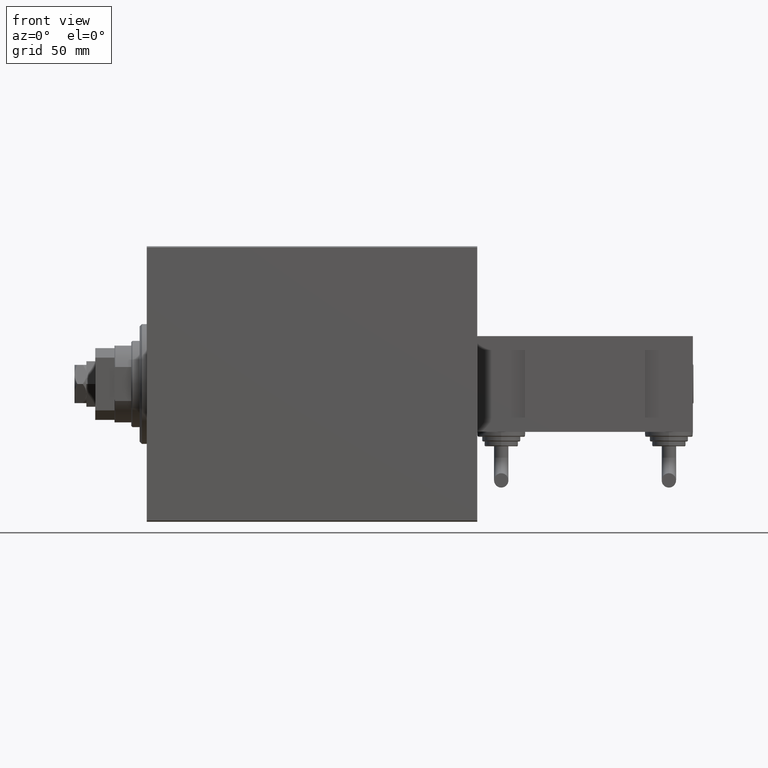
[diagram: clean part render]
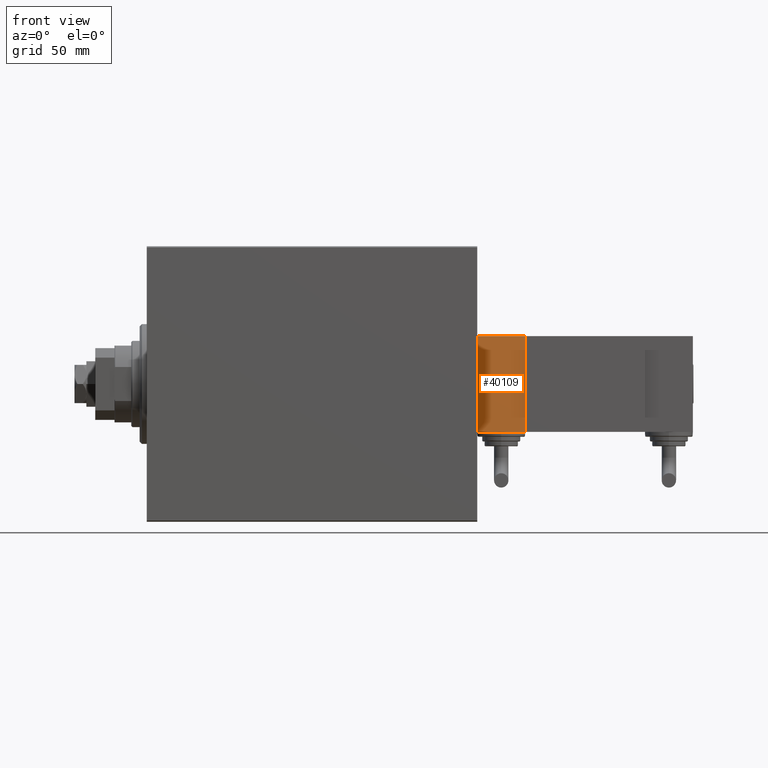
[diagram: same view with one face highlighted and labeled with its STEP entity id]
A machine part, front view. The second image highlights one B-rep face of the part: STEP entity #40109.
In plain terms, the highlighted planar face has unit normal (0, 1, 0).
Its self-contained STEP definition (entity closure, byte-faithful):
#267 = CARTESIAN_POINT ( 'NONE',  ( 20.00000000000005329, -17.49999999999996092, -9.999999999999998224 ) ) ;
#3895 = VERTEX_POINT ( 'NONE', #35900 ) ;
#7275 = ORIENTED_EDGE ( 'NONE', *, *, #45575, .T. ) ;
#8366 = VECTOR ( 'NONE', #9352, 1000.000000000000000 ) ;
#9352 = DIRECTION ( 'NONE',  ( 1.000000000000000000, 0.000000000000000000, 0.000000000000000000 ) ) ;
#9907 = VERTEX_POINT ( 'NONE', #39204 ) ;
#10783 = DIRECTION ( 'NONE',  ( 0.000000000000000000, -0.000000000000000000, 1.000000000000000000 ) ) ;
#10934 = EDGE_LOOP ( 'NONE', ( #13269, #7275, #16828, #23176 ) ) ;
#11631 = LINE ( 'NONE', #267, #49604 ) ;
#13269 = ORIENTED_EDGE ( 'NONE', *, *, #21162, .T. ) ;
#13586 = CARTESIAN_POINT ( 'NONE',  ( 0.000000000000000000, -17.49999999999996092, 0.000000000000000000 ) ) ;
#15922 = DIRECTION ( 'NONE',  ( 0.000000000000000000, 0.000000000000000000, 1.000000000000000000 ) ) ;
#16686 = CARTESIAN_POINT ( 'NONE',  ( -19.99999999999994316, -17.49999999999996092, -9.999999999999998224 ) ) ;
#16828 = ORIENTED_EDGE ( 'NONE', *, *, #45810, .T. ) ;
#16849 = CARTESIAN_POINT ( 'NONE',  ( -19.99999999999994316, -17.49999999999996092, 10.00000000000000000 ) ) ;
#17380 = CARTESIAN_POINT ( 'NONE',  ( -19.99999999999994316, -17.49999999999996092, 10.00000000000000000 ) ) ;
#18124 = VERTEX_POINT ( 'NONE', #16849 ) ;
#18429 = LINE ( 'NONE', #30065, #22206 ) ;
#20482 = LINE ( 'NONE', #16686, #8366 ) ;
#21162 = EDGE_CURVE ( 'NONE', #9907, #3895, #11631, .T. ) ;
#21915 = PLANE ( 'NONE',  #30882 ) ;
#22206 = VECTOR ( 'NONE', #26530, 1000.000000000000000 ) ;
#23176 = ORIENTED_EDGE ( 'NONE', *, *, #43370, .T. ) ;
#25488 = CARTESIAN_POINT ( 'NONE',  ( -19.99999999999994316, -17.49999999999996092, -9.999999999999998224 ) ) ;
#26530 = DIRECTION ( 'NONE',  ( -0.000000000000000000, -0.000000000000000000, -1.000000000000000000 ) ) ;
#30065 = CARTESIAN_POINT ( 'NONE',  ( -19.99999999999994316, -17.49999999999996092, -9.999999999999998224 ) ) ;
#30882 = AXIS2_PLACEMENT_3D ( 'NONE', #13586, #36604, #10783 ) ;
#31810 = VERTEX_POINT ( 'NONE', #25488 ) ;
#32812 = DIRECTION ( 'NONE',  ( -1.000000000000000000, -0.000000000000000000, -0.000000000000000000 ) ) ;
#33555 = FACE_OUTER_BOUND ( 'NONE', #10934, .T. ) ;
#34312 = VECTOR ( 'NONE', #32812, 1000.000000000000000 ) ;
#35900 = CARTESIAN_POINT ( 'NONE',  ( 20.00000000000005329, -17.49999999999996092, 10.00000000000000000 ) ) ;
#36604 = DIRECTION ( 'NONE',  ( 0.000000000000000000, 1.000000000000000000, 0.000000000000000000 ) ) ;
#39204 = CARTESIAN_POINT ( 'NONE',  ( 20.00000000000005329, -17.49999999999996092, -9.999999999999998224 ) ) ;
#40109 = ADVANCED_FACE ( 'NONE', ( #33555 ), #21915, .F. ) ;
#40393 = LINE ( 'NONE', #17380, #34312 ) ;
#43370 = EDGE_CURVE ( 'NONE', #31810, #9907, #20482, .T. ) ;
#45575 = EDGE_CURVE ( 'NONE', #3895, #18124, #40393, .T. ) ;
#45810 = EDGE_CURVE ( 'NONE', #18124, #31810, #18429, .T. ) ;
#49604 = VECTOR ( 'NONE', #15922, 1000.000000000000000 ) ;